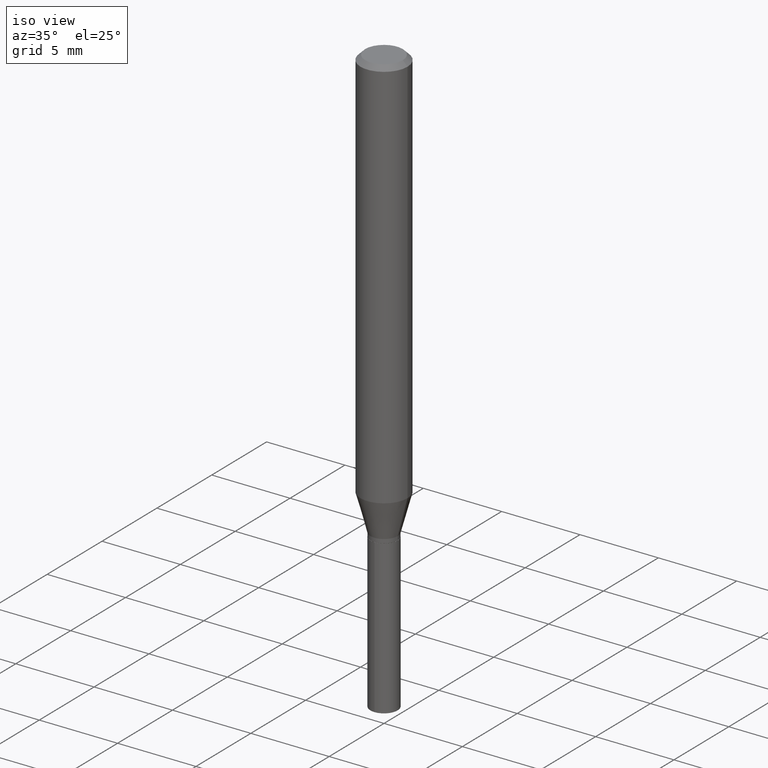
[diagram: clean part render]
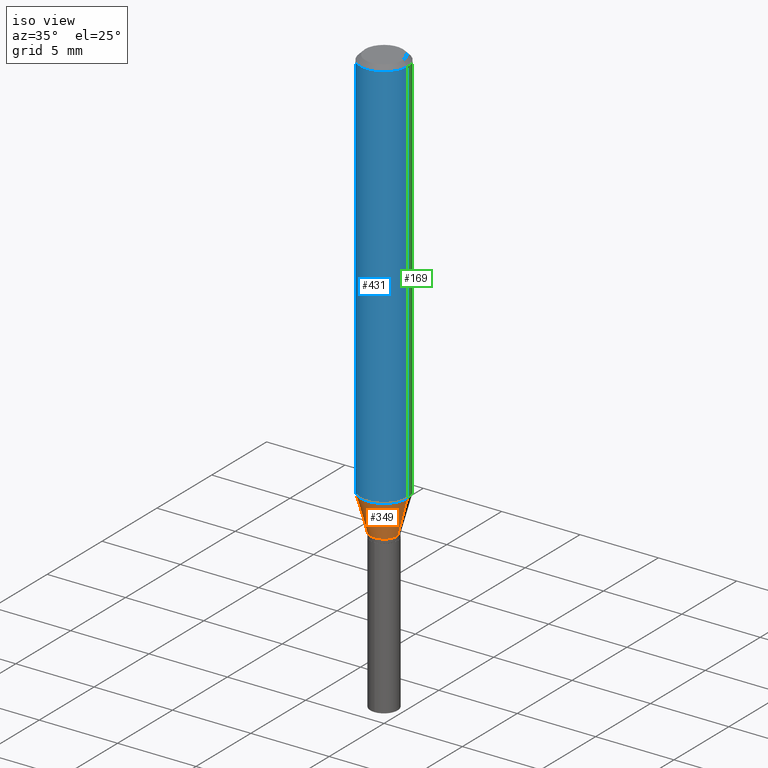
[diagram: same view with three faces highlighted in distinct colors, each labeled with its STEP entity id]
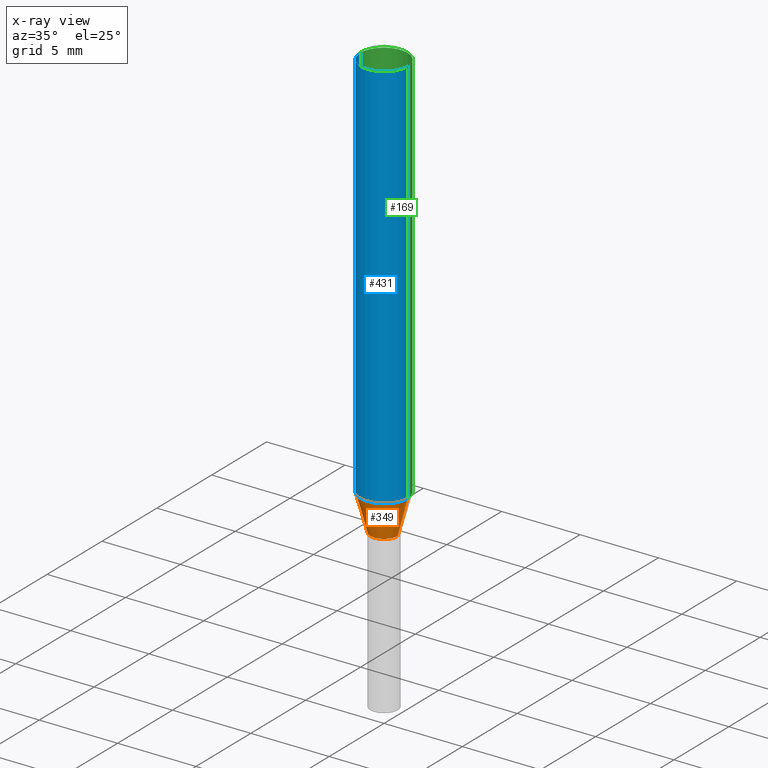
[diagram: x-ray of the same camera — body ghosted, the three highlighted faces saturated]
A machine part, iso view with three faces highlighted in distinct colors.
The next image is the same camera in x-ray (body ghosted, the three faces saturated) — at least one of them is partly hidden behind the body in this view.
Their STEP definitions:

[orange] entity #349 — the highlighted conical surface has half-angle 15 deg.
#10 = VECTOR ( 'NONE', #132, 39.37007874015748143 ) ;
#14 = EDGE_CURVE ( 'NONE', #263, #112, #191, .T. ) ;
#28 = CONICAL_SURFACE ( 'NONE', #172, 0.03425000000000000266, 0.2617993877991497964 ) ;
#38 = DIRECTION ( 'NONE',  ( -2.445468806185136597E-29, 3.491481338843145583E-15, 1.000000000000000000 ) ) ;
#52 = CARTESIAN_POINT ( 'NONE',  ( 0.03425000000000000266, -4.024630539284492888E-15, -1.084199999999999831 ) ) ;
#66 = DIRECTION ( 'NONE',  ( 1.000000000000000000, -6.982962677686268288E-15, 0.000000000000000000 ) ) ;
#102 = DIRECTION ( 'NONE',  ( -2.445468806185136597E-29, 3.491481338843145583E-15, 1.000000000000000000 ) ) ;
#112 = VERTEX_POINT ( 'NONE', #166 ) ;
#120 = ORIENTED_EDGE ( 'NONE', *, *, #14, .T. ) ;
#132 = DIRECTION ( 'NONE',  ( -0.2588190451025211281, 5.211531920934548675E-15, 0.9659258262890682012 ) ) ;
#134 = LINE ( 'NONE', #420, #10 ) ;
#148 = EDGE_LOOP ( 'NONE', ( #401, #395, #120, #373 ) ) ;
#152 = CIRCLE ( 'NONE', #317, 0.03425000000000000266 ) ;
#166 = CARTESIAN_POINT ( 'NONE',  ( 0.05905000000000011628, -3.874654447085129715E-15, -0.9916451399722914228 ) ) ;
#171 = CARTESIAN_POINT ( 'NONE',  ( -0.05905000000000011628, -3.042735015501414908E-15, -0.9916451399722914228 ) ) ;
#172 = AXIS2_PLACEMENT_3D ( 'NONE', #342, #38, #458 ) ;
#191 = LINE ( 'NONE', #205, #436 ) ;
#205 = CARTESIAN_POINT ( 'NONE',  ( 0.03425000000000000266, -4.024630539284492888E-15, -1.084199999999999831 ) ) ;
#206 = VERTEX_POINT ( 'NONE', #299 ) ;
#223 = DIRECTION ( 'NONE',  ( 1.000000000000000000, -6.982962677686266711E-15, 0.000000000000000000 ) ) ;
#238 = AXIS2_PLACEMENT_3D ( 'NONE', #264, #102, #223 ) ;
#263 = VERTEX_POINT ( 'NONE', #52 ) ;
#264 = CARTESIAN_POINT ( 'NONE',  ( 2.425037256607332168E-29, -3.462310500967754795E-15, -0.9916451399722914228 ) ) ;
#265 = DIRECTION ( 'NONE',  ( -2.445468806185136597E-29, 3.491481338843145583E-15, 1.000000000000000000 ) ) ;
#297 = EDGE_CURVE ( 'NONE', #404, #112, #489, .T. ) ;
#299 = CARTESIAN_POINT ( 'NONE',  ( -0.03425000000000000266, -3.559211439136235413E-15, -1.084199999999999831 ) ) ;
#302 = CARTESIAN_POINT ( 'NONE',  ( 2.651377279665924456E-29, -3.785464067573738222E-15, -1.084199999999999831 ) ) ;
#316 = EDGE_CURVE ( 'NONE', #206, #404, #134, .T. ) ;
#317 = AXIS2_PLACEMENT_3D ( 'NONE', #302, #265, #66 ) ;
#342 = CARTESIAN_POINT ( 'NONE',  ( 2.651377279665924456E-29, -3.785464067573738222E-15, -1.084199999999999831 ) ) ;
#349 = ADVANCED_FACE ( 'NONE', ( #385 ), #28, .T. ) ;
#361 = DIRECTION ( 'NONE',  ( 0.2588190451025211281, 1.565188264969623940E-15, 0.9659258262890682012 ) ) ;
#373 = ORIENTED_EDGE ( 'NONE', *, *, #297, .F. ) ;
#385 = FACE_OUTER_BOUND ( 'NONE', #148, .T. ) ;
#395 = ORIENTED_EDGE ( 'NONE', *, *, #441, .T. ) ;
#401 = ORIENTED_EDGE ( 'NONE', *, *, #316, .F. ) ;
#404 = VERTEX_POINT ( 'NONE', #171 ) ;
#420 = CARTESIAN_POINT ( 'NONE',  ( -0.03425000000000000266, -3.542103180575903889E-15, -1.084199999999999831 ) ) ;
#436 = VECTOR ( 'NONE', #361, 39.37007874015748143 ) ;
#441 = EDGE_CURVE ( 'NONE', #206, #263, #152, .T. ) ;
#458 = DIRECTION ( 'NONE',  ( 1.000000000000000000, -6.982962677686268288E-15, 0.000000000000000000 ) ) ;
#489 = CIRCLE ( 'NONE', #238, 0.05905000000000011628 ) ;

[blue] entity #431 — the highlighted cylindrical surface (edge-blend (fillet) strip) has radius 1.4999 mm, axis along (-0, 0, 1).
#2 = EDGE_CURVE ( 'NONE', #400, #277, #22, .T. ) ;
#22 = CIRCLE ( 'NONE', #144, 0.05904999999999999832 ) ;
#86 = ORIENTED_EDGE ( 'NONE', *, *, #324, .T. ) ;
#91 = CYLINDRICAL_SURFACE ( 'NONE', #409, 0.05905000000000006077 ) ;
#93 = DIRECTION ( 'NONE',  ( -2.445468806185136877E-29, 3.491481338843145188E-15, 1.000000000000000000 ) ) ;
#102 = DIRECTION ( 'NONE',  ( -2.445468806185136597E-29, 3.491481338843145583E-15, 1.000000000000000000 ) ) ;
#105 = CARTESIAN_POINT ( 'NONE',  ( 0.05905000000000006077, -4.123439461173744764E-16, 2.879382386107503023E-30 ) ) ;
#112 = VERTEX_POINT ( 'NONE', #166 ) ;
#119 = DIRECTION ( 'NONE',  ( 1.000000000000000000, -6.982962677686266711E-15, 0.000000000000000000 ) ) ;
#128 = CARTESIAN_POINT ( 'NONE',  ( -0.05905000000000006077, 4.195754854663395916E-16, -2.904631170795524694E-30 ) ) ;
#144 = AXIS2_PLACEMENT_3D ( 'NONE', #321, #329, #119 ) ;
#166 = CARTESIAN_POINT ( 'NONE',  ( 0.05905000000000011628, -3.874654447085129715E-15, -0.9916451399722914228 ) ) ;
#171 = CARTESIAN_POINT ( 'NONE',  ( -0.05905000000000011628, -3.042735015501414908E-15, -0.9916451399722914228 ) ) ;
#181 = VECTOR ( 'NONE', #228, 39.37007874015748143 ) ;
#186 = LINE ( 'NONE', #105, #181 ) ;
#208 = EDGE_CURVE ( 'NONE', #404, #400, #445, .T. ) ;
#223 = DIRECTION ( 'NONE',  ( 1.000000000000000000, -6.982962677686266711E-15, 0.000000000000000000 ) ) ;
#228 = DIRECTION ( 'NONE',  ( -2.445468806185136877E-29, 3.491481338843145188E-15, 1.000000000000000000 ) ) ;
#238 = AXIS2_PLACEMENT_3D ( 'NONE', #264, #102, #223 ) ;
#245 = ORIENTED_EDGE ( 'NONE', *, *, #2, .F. ) ;
#246 = CARTESIAN_POINT ( 'NONE',  ( -0.05904999999999999832, -1.332196962323405783E-15, -0.01181000000000007218 ) ) ;
#264 = CARTESIAN_POINT ( 'NONE',  ( 2.425037256607332168E-29, -3.462310500967754795E-15, -0.9916451399722914228 ) ) ;
#277 = VERTEX_POINT ( 'NONE', #290 ) ;
#290 = CARTESIAN_POINT ( 'NONE',  ( 0.05904999999999999832, -4.535783407291118600E-16, -0.01181000000000007218 ) ) ;
#297 = EDGE_CURVE ( 'NONE', #404, #112, #489, .T. ) ;
#321 = CARTESIAN_POINT ( 'NONE',  ( 2.888098660104664204E-31, -4.123439461173780263E-17, -0.01181000000000007218 ) ) ;
#324 = EDGE_CURVE ( 'NONE', #112, #277, #186, .T. ) ;
#329 = DIRECTION ( 'NONE',  ( -2.445468806185136597E-29, 3.491481338843145583E-15, 1.000000000000000000 ) ) ;
#343 = FACE_OUTER_BOUND ( 'NONE', #450, .T. ) ;
#391 = ORIENTED_EDGE ( 'NONE', *, *, #297, .T. ) ;
#393 = ORIENTED_EDGE ( 'NONE', *, *, #208, .F. ) ;
#400 = VERTEX_POINT ( 'NONE', #246 ) ;
#404 = VERTEX_POINT ( 'NONE', #171 ) ;
#408 = VECTOR ( 'NONE', #93, 39.37007874015748143 ) ;
#409 = AXIS2_PLACEMENT_3D ( 'NONE', #485, #418, #486 ) ;
#418 = DIRECTION ( 'NONE',  ( -2.445468806185136597E-29, 3.491481338843145583E-15, 1.000000000000000000 ) ) ;
#431 = ADVANCED_FACE ( 'NONE', ( #343 ), #91, .T. ) ;
#445 = LINE ( 'NONE', #128, #408 ) ;
#450 = EDGE_LOOP ( 'NONE', ( #393, #391, #86, #245 ) ) ;
#485 = CARTESIAN_POINT ( 'NONE',  ( 0.000000000000000000, 0.000000000000000000, 0.000000000000000000 ) ) ;
#486 = DIRECTION ( 'NONE',  ( 1.000000000000000000, -6.982962677686266711E-15, 4.876176775795935793E-29 ) ) ;
#489 = CIRCLE ( 'NONE', #238, 0.05905000000000011628 ) ;

[green] entity #169 — the highlighted cylindrical surface (edge-blend (fillet) strip) has radius 1.4999 mm, axis along (-0, 0, 1).
#4 = ORIENTED_EDGE ( 'NONE', *, *, #457, .T. ) ;
#15 = DIRECTION ( 'NONE',  ( 1.000000000000000000, -6.982962677686266711E-15, 4.876176775795935793E-29 ) ) ;
#34 = EDGE_LOOP ( 'NONE', ( #4, #306, #50, #196 ) ) ;
#50 = ORIENTED_EDGE ( 'NONE', *, *, #70, .F. ) ;
#70 = EDGE_CURVE ( 'NONE', #277, #400, #113, .T. ) ;
#74 = DIRECTION ( 'NONE',  ( 1.000000000000000000, -6.982962677686266711E-15, 0.000000000000000000 ) ) ;
#85 = FACE_OUTER_BOUND ( 'NONE', #34, .T. ) ;
#93 = DIRECTION ( 'NONE',  ( -2.445468806185136877E-29, 3.491481338843145188E-15, 1.000000000000000000 ) ) ;
#105 = CARTESIAN_POINT ( 'NONE',  ( 0.05905000000000006077, -4.123439461173744764E-16, 2.879382386107503023E-30 ) ) ;
#110 = CARTESIAN_POINT ( 'NONE',  ( 2.888098660104664204E-31, -4.123439461173780263E-17, -0.01181000000000007218 ) ) ;
#112 = VERTEX_POINT ( 'NONE', #166 ) ;
#113 = CIRCLE ( 'NONE', #122, 0.05904999999999999832 ) ;
#122 = AXIS2_PLACEMENT_3D ( 'NONE', #110, #424, #74 ) ;
#128 = CARTESIAN_POINT ( 'NONE',  ( -0.05905000000000006077, 4.195754854663395916E-16, -2.904631170795524694E-30 ) ) ;
#130 = DIRECTION ( 'NONE',  ( -2.445468806185136597E-29, 3.491481338843145583E-15, 1.000000000000000000 ) ) ;
#162 = AXIS2_PLACEMENT_3D ( 'NONE', #335, #130, #15 ) ;
#166 = CARTESIAN_POINT ( 'NONE',  ( 0.05905000000000011628, -3.874654447085129715E-15, -0.9916451399722914228 ) ) ;
#169 = ADVANCED_FACE ( 'NONE', ( #85 ), #440, .T. ) ;
#171 = CARTESIAN_POINT ( 'NONE',  ( -0.05905000000000011628, -3.042735015501414908E-15, -0.9916451399722914228 ) ) ;
#181 = VECTOR ( 'NONE', #228, 39.37007874015748143 ) ;
#186 = LINE ( 'NONE', #105, #181 ) ;
#196 = ORIENTED_EDGE ( 'NONE', *, *, #324, .F. ) ;
#208 = EDGE_CURVE ( 'NONE', #404, #400, #445, .T. ) ;
#228 = DIRECTION ( 'NONE',  ( -2.445468806185136877E-29, 3.491481338843145188E-15, 1.000000000000000000 ) ) ;
#246 = CARTESIAN_POINT ( 'NONE',  ( -0.05904999999999999832, -1.332196962323405783E-15, -0.01181000000000007218 ) ) ;
#257 = CARTESIAN_POINT ( 'NONE',  ( 2.425037256607332168E-29, -3.462310500967754795E-15, -0.9916451399722914228 ) ) ;
#277 = VERTEX_POINT ( 'NONE', #290 ) ;
#290 = CARTESIAN_POINT ( 'NONE',  ( 0.05904999999999999832, -4.535783407291118600E-16, -0.01181000000000007218 ) ) ;
#301 = AXIS2_PLACEMENT_3D ( 'NONE', #257, #413, #410 ) ;
#306 = ORIENTED_EDGE ( 'NONE', *, *, #208, .T. ) ;
#324 = EDGE_CURVE ( 'NONE', #112, #277, #186, .T. ) ;
#326 = CIRCLE ( 'NONE', #301, 0.05905000000000011628 ) ;
#335 = CARTESIAN_POINT ( 'NONE',  ( 0.000000000000000000, 0.000000000000000000, 0.000000000000000000 ) ) ;
#400 = VERTEX_POINT ( 'NONE', #246 ) ;
#404 = VERTEX_POINT ( 'NONE', #171 ) ;
#408 = VECTOR ( 'NONE', #93, 39.37007874015748143 ) ;
#410 = DIRECTION ( 'NONE',  ( 1.000000000000000000, -6.982962677686266711E-15, 0.000000000000000000 ) ) ;
#413 = DIRECTION ( 'NONE',  ( -2.445468806185136597E-29, 3.491481338843145583E-15, 1.000000000000000000 ) ) ;
#424 = DIRECTION ( 'NONE',  ( -2.445468806185136597E-29, 3.491481338843145583E-15, 1.000000000000000000 ) ) ;
#440 = CYLINDRICAL_SURFACE ( 'NONE', #162, 0.05905000000000006077 ) ;
#445 = LINE ( 'NONE', #128, #408 ) ;
#457 = EDGE_CURVE ( 'NONE', #112, #404, #326, .T. ) ;